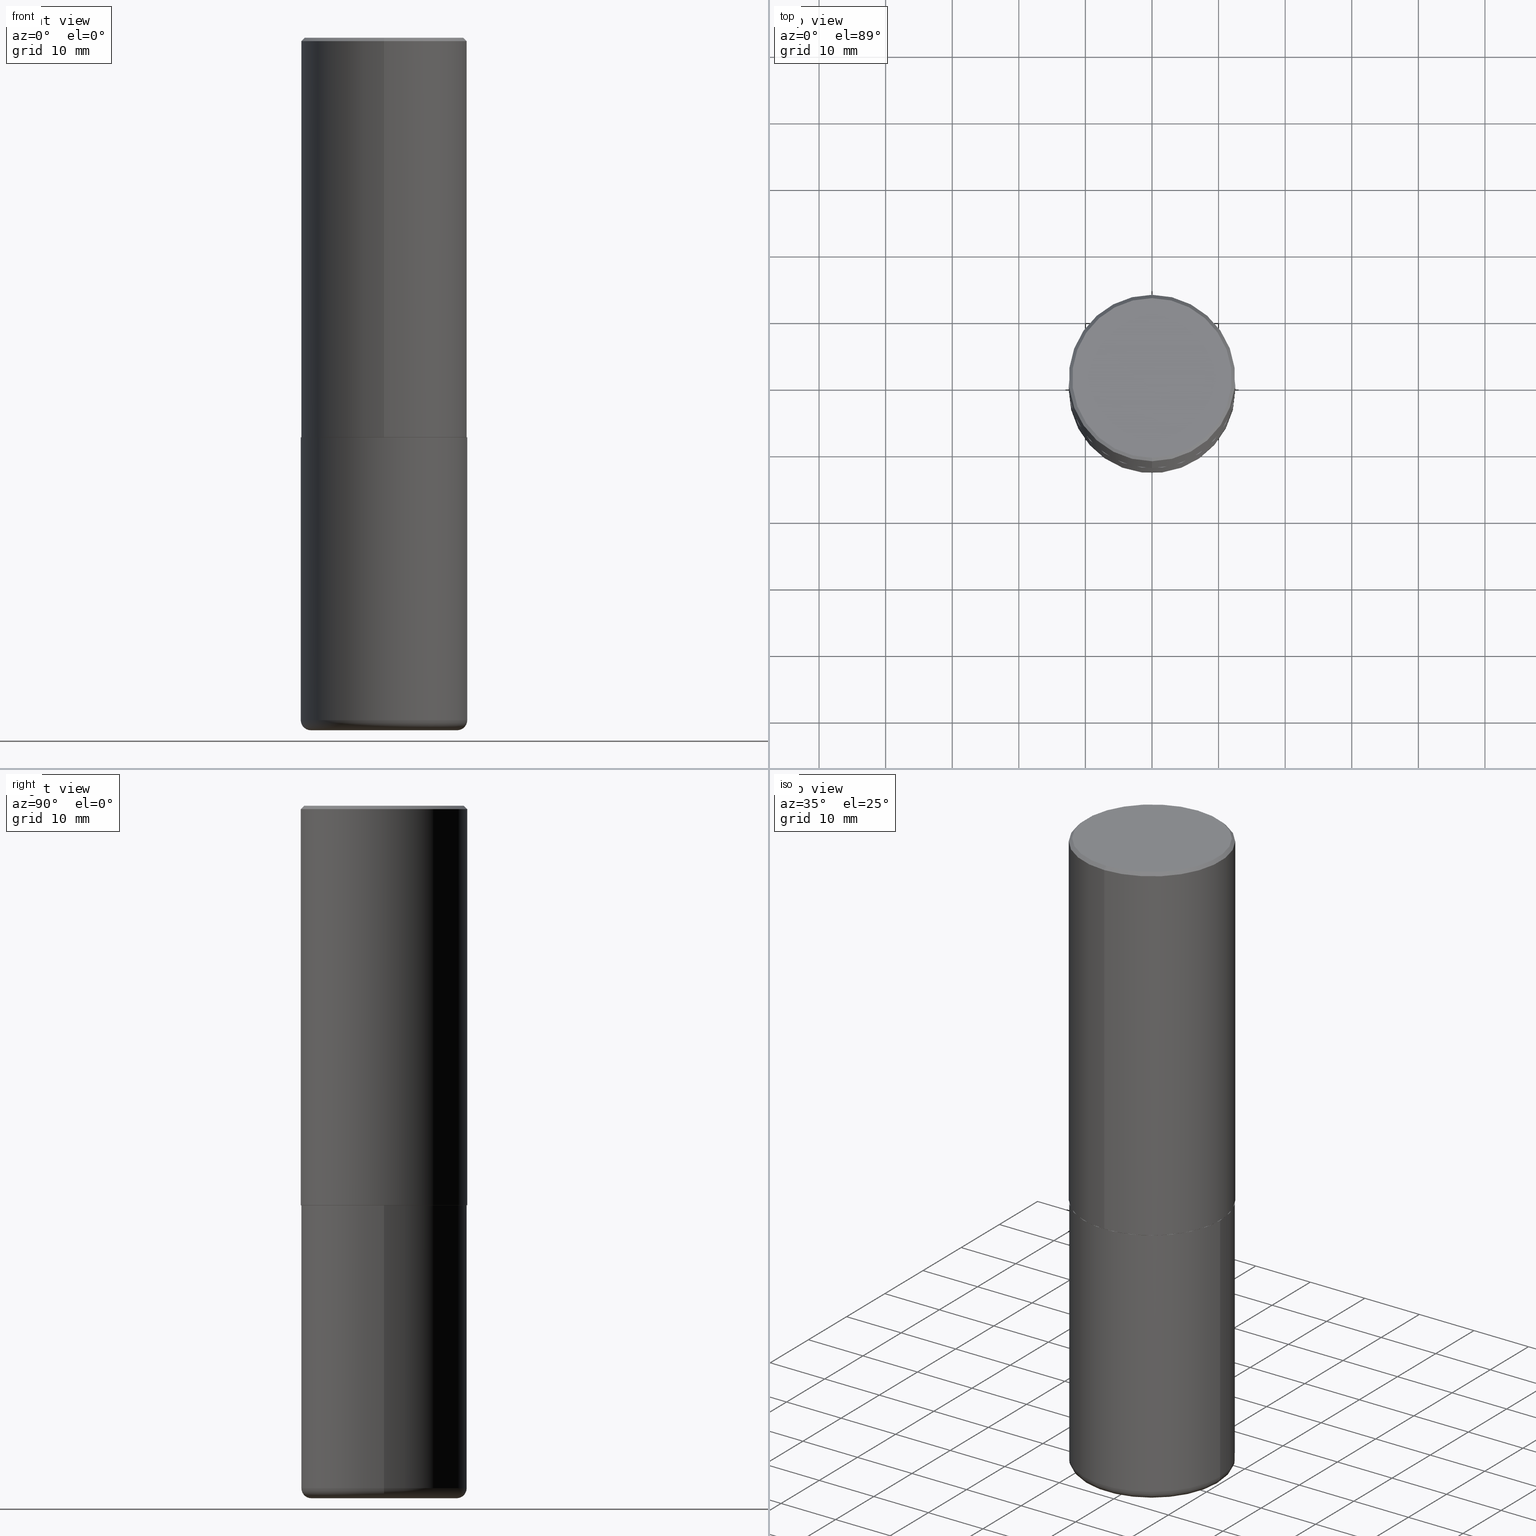
[diagram: canonical four-view strip — front | top / right | iso, engineering-drawing reading convention]
A machine part, canonical four-view strip (front | top / right | iso — engineering-drawing reading convention). The complete STEP part file that produces these views, byte-faithful:
ISO-10303-21;
HEADER;
FILE_DESCRIPTION (( 'STEP AP203' ),
    '1' );
FILE_NAME ('46231.STEP',
    '2024-03-04T20:29:12',
    ( '' ),
    ( '' ),
    'SwSTEP 2.0',
    'SolidWorks 2023',
    '' );
FILE_SCHEMA (( 'CONFIG_CONTROL_DESIGN' ));
ENDSEC;

DATA;
#1 = FACE_OUTER_BOUND ( 'NONE', #240, .T. ) ;
#2 = MECHANICAL_CONTEXT ( 'NONE', #387, 'mechanical' ) ;
#3 = VERTEX_POINT ( 'NONE', #335 ) ;
#4 = DIRECTION ( 'NONE',  ( -6.982962677686266711E-15, -1.000000000000000000, 3.330506545156064285E-15 ) ) ;
#5 = ORIENTED_EDGE ( 'NONE', *, *, #68, .F. ) ;
#6 = CARTESIAN_POINT ( 'NONE',  ( 3.297005828269569180E-15, 0.4721499999999997921, -1.572350238809718897E-15 ) ) ;
#7 = ORIENTED_EDGE ( 'NONE', *, *, #389, .F. ) ;
#8 = DIRECTION ( 'NONE',  ( -2.445468806185136597E-29, 3.491481338843145583E-15, 1.000000000000000000 ) ) ;
#9 = ORIENTED_EDGE ( 'NONE', *, *, #327, .T. ) ;
#10 = EDGE_CURVE ( 'NONE', #3, #225, #313, .T. ) ;
#11 = DIRECTION ( 'NONE',  ( -1.000000000000000000, 6.982962677686265922E-15, -4.876176775795935793E-29 ) ) ;
#12 = APPROVAL_STATUS ( 'not_yet_approved' ) ;
#13 = EDGE_CURVE ( 'NONE', #225, #255, #57, .T. ) ;
#14 = DIMENSIONAL_EXPONENTS ( 1.000000000000000000, 0.000000000000000000, 0.000000000000000000, 0.000000000000000000, 0.000000000000000000, 0.000000000000000000, 0.000000000000000000 ) ;
#15 = ORIENTED_EDGE ( 'NONE', *, *, #412, .T. ) ;
#16 = TOROIDAL_SURFACE ( 'NONE', #248, 0.4323499999999999566, 0.05980000000000013777 ) ;
#17 = EDGE_CURVE ( 'NONE', #175, #288, #284, .T. ) ;
#18 = SHAPE_DEFINITION_REPRESENTATION ( #375, #78 ) ;
#19 = CARTESIAN_POINT ( 'NONE',  ( 0.4921499999999999764, -3.436665081823295777E-15, 2.399810400207969603E-29 ) ) ;
#20 = DIRECTION ( 'NONE',  ( -2.443455779928216306E-29, 3.494364107017394518E-15, 1.000000000000000000 ) ) ;
#21 = AXIS2_PLACEMENT_3D ( 'NONE', #63, #20, #25 ) ;
#22 = CARTESIAN_POINT ( 'NONE',  ( 1.001297202692504327E-28, -1.429587034189326465E-14, -4.094500000000000917 ) ) ;
#23 = VECTOR ( 'NONE', #39, 39.37007874015748143 ) ;
#24 = ORIENTED_EDGE ( 'NONE', *, *, #327, .F. ) ;
#25 = DIRECTION ( 'NONE',  ( -6.982962677686265922E-15, -1.000000000000000000, 3.495297233588267464E-15 ) ) ;
#26 = EDGE_CURVE ( 'NONE', #65, #210, #152, .T. ) ;
#27 = LINE ( 'NONE', #289, #159 ) ;
#28 = UNCERTAINTY_MEASURE_WITH_UNIT (LENGTH_MEASURE( 1.000000000000000082E-05 ), #348, 'distance_accuracy_value', 'NONE');
#29 = CIRCLE ( 'NONE', #133, 0.4921500000000002539 ) ;
#30 = APPROVAL_STATUS ( 'not_yet_approved' ) ;
#31 = ORIENTED_EDGE ( 'NONE', *, *, #137, .F. ) ;
#32 = CALENDAR_DATE ( 2024, 4, 3 ) ;
#33 = CYLINDRICAL_SURFACE ( 'NONE', #212, 0.4921499999999999764 ) ;
#34 = ORIENTED_EDGE ( 'NONE', *, *, #299, .F. ) ;
#35 = CC_DESIGN_DATE_AND_TIME_ASSIGNMENT ( #309, #401, ( #48 ) ) ;
#36 = CONICAL_SURFACE ( 'NONE', #114, 0.4921499999999999764, 0.7853981633974467247 ) ;
#37 = DIRECTION ( 'NONE',  ( 1.000000000000000000, -6.982962677686265922E-15, 0.000000000000000000 ) ) ;
#38 = LOCAL_TIME ( 15, 29, 12.00000000000000000, #44 ) ;
#39 = DIRECTION ( 'NONE',  ( -2.445468806185136877E-29, 3.491481338843145188E-15, 1.000000000000000000 ) ) ;
#40 = CARTESIAN_POINT ( 'NONE',  ( -0.4323499999999999566, -1.090699125381078817E-14, -4.094500000000000917 ) ) ;
#41 = APPROVAL_DATE_TIME ( #287, #111 ) ;
#42 = PLANE ( 'NONE',  #192 ) ;
#43 = DIRECTION ( 'NONE',  ( 2.443455779928216306E-29, -3.494364107017394124E-15, -1.000000000000000000 ) ) ;
#44 = COORDINATED_UNIVERSAL_TIME_OFFSET ( 5, 0, .BEHIND. ) ;
#45 = CIRCLE ( 'NONE', #85, 0.4921499999999999764 ) ;
#46 = ADVANCED_FACE ( 'NONE', ( #364 ), #36, .T. ) ;
#47 = ORIENTED_EDGE ( 'NONE', *, *, #10, .F. ) ;
#48 = SECURITY_CLASSIFICATION ( '', '', #184 ) ;
#49 = CARTESIAN_POINT ( 'NONE',  ( -0.4921500000000000319, -1.059014368378710651E-14, -4.034700000000000841 ) ) ;
#50 = COORDINATED_UNIVERSAL_TIME_OFFSET ( 5, 0, .BEHIND. ) ;
#51 = PERSON_AND_ORGANIZATION_ROLE ( 'classification_officer' ) ;
#52 = LINE ( 'NONE', #19, #249 ) ;
#53 = EDGE_CURVE ( 'NONE', #132, #69, #198, .T. ) ;
#54 = PERSON_AND_ORGANIZATION ( #384, #314 ) ;
#55 = AXIS2_PLACEMENT_3D ( 'NONE', #276, #89, #338 ) ;
#56 = CC_DESIGN_DATE_AND_TIME_ASSIGNMENT ( #350, #320, ( #400 ) ) ;
#57 = LINE ( 'NONE', #101, #247 ) ;
#58 = CYLINDRICAL_SURFACE ( 'NONE', #366, 0.4921500000000000874 ) ;
#59 = CARTESIAN_POINT ( 'NONE',  ( 5.771931243346433876E-29, -8.254386893596491194E-15, -2.362200000000000077 ) ) ;
#60 = EDGE_LOOP ( 'NONE', ( #245, #87 ) ) ;
#61 = ADVANCED_FACE ( 'NONE', ( #139 ), #42, .F. ) ;
#62 = AXIS2_PLACEMENT_3D ( 'NONE', #265, #232, #77 ) ;
#63 = CARTESIAN_POINT ( 'NONE',  ( 4.886911559856459377E-31, -6.988728214034825176E-17, -0.02000000000000010797 ) ) ;
#64 = CC_DESIGN_SECURITY_CLASSIFICATION ( #48, ( #226 ) ) ;
#65 = VERTEX_POINT ( 'NONE', #180 ) ;
#66 = CC_DESIGN_PERSON_AND_ORGANIZATION_ASSIGNMENT ( #110, #228, ( #334 ) ) ;
#67 = DIRECTION ( 'NONE',  ( -2.443455779928216306E-29, 3.494364107017394124E-15, 1.000000000000000000 ) ) ;
#68 = EDGE_CURVE ( 'NONE', #288, #175, #45, .T. ) ;
#69 = VERTEX_POINT ( 'NONE', #40 ) ;
#70 =( GEOMETRIC_REPRESENTATION_CONTEXT ( 3 ) GLOBAL_UNCERTAINTY_ASSIGNED_CONTEXT ( ( #28 ) ) GLOBAL_UNIT_ASSIGNED_CONTEXT ( ( #348, #324, #393 ) ) REPRESENTATION_CONTEXT ( 'NONE', 'WORKASPACE' ) );
#71 = DIRECTION ( 'NONE',  ( 1.000000000000000000, -6.982962677686265922E-15, 4.876176775795935793E-29 ) ) ;
#72 = APPROVAL_ROLE ( '' ) ;
#73 = ORIENTED_EDGE ( 'NONE', *, *, #266, .T. ) ;
#74 = CARTESIAN_POINT ( 'NONE',  ( -3.788029597653915007E-45, 5.417227015563283048E-31, 1.550275486370864429E-16 ) ) ;
#75 = ADVANCED_FACE ( 'NONE', ( #170 ), #16, .T. ) ;
#76 = DIRECTION ( 'NONE',  ( 2.438088387897960049E-29, -3.491481338843145188E-15, -1.000000000000000000 ) ) ;
#77 = DIRECTION ( 'NONE',  ( -6.982962677686265922E-15, -1.000000000000000000, 3.337287582609300506E-15 ) ) ;
#78 = ADVANCED_BREP_SHAPE_REPRESENTATION ( '46231', ( #257, #252, #154 ), #70 ) ;
#79 = CARTESIAN_POINT ( 'NONE',  ( 9.866732992315171563E-29, -1.408707975783044020E-14, -4.034700000000000841 ) ) ;
#80 = DIRECTION ( 'NONE',  ( -2.443455779928216306E-29, 3.494364107017394518E-15, 1.000000000000000000 ) ) ;
#81 = PERSON_AND_ORGANIZATION_ROLE ( 'creator' ) ;
#82 = ORIENTED_EDGE ( 'NONE', *, *, #26, .F. ) ;
#83 = DIRECTION ( 'NONE',  ( -2.443455779928216306E-29, 3.494364107017394124E-15, 1.000000000000000000 ) ) ;
#84 = PERSON_AND_ORGANIZATION ( #384, #314 ) ;
#85 = AXIS2_PLACEMENT_3D ( 'NONE', #237, #8, #109 ) ;
#86 = AXIS2_PLACEMENT_3D ( 'NONE', #194, #316, #373 ) ;
#87 = ORIENTED_EDGE ( 'NONE', *, *, #26, .T. ) ;
#88 = ORIENTED_EDGE ( 'NONE', *, *, #283, .T. ) ;
#89 = DIRECTION ( 'NONE',  ( -2.443455779928216306E-29, 3.494364107017394518E-15, 1.000000000000000000 ) ) ;
#90 = AXIS2_PLACEMENT_3D ( 'NONE', #167, #262, #37 ) ;
#91 = CC_DESIGN_APPROVAL ( #111, ( #400 ) ) ;
#92 = CARTESIAN_POINT ( 'NONE',  ( -0.4323499999999999566, -1.101504823977164696E-14, -4.034700000000000841 ) ) ;
#93 = CARTESIAN_POINT ( 'NONE',  ( -3.376394089603258262E-15, -0.4921500000000000319, -0.01999999999999838712 ) ) ;
#94 = EDGE_CURVE ( 'NONE', #210, #345, #385, .T. ) ;
#95 = ORIENTED_EDGE ( 'NONE', *, *, #214, .F. ) ;
#96 = APPLICATION_CONTEXT ( 'configuration controlled 3d designs of mechanical parts and assemblies' ) ;
#97 = FACE_OUTER_BOUND ( 'NONE', #394, .T. ) ;
#98 = AXIS2_PLACEMENT_3D ( 'NONE', #206, #323, #173 ) ;
#99 = DIRECTION ( 'NONE',  ( -2.443455779928216306E-29, 3.494364107017394124E-15, 1.000000000000000000 ) ) ;
#100 = AXIS2_PLACEMENT_3D ( 'NONE', #208, #156, #325 ) ;
#101 = CARTESIAN_POINT ( 'NONE',  ( -3.436665081823296565E-15, -0.4921500000000000874, 1.719751295268611036E-15 ) ) ;
#102 = LENGTH_MEASURE_WITH_UNIT ( LENGTH_MEASURE( 0.02539999999999999897 ), #231 );
#103 = AXIS2_PLACEMENT_3D ( 'NONE', #22, #406, #272 ) ;
#104 = DIRECTION ( 'NONE',  ( -2.443455779928216306E-29, 3.494364107017394518E-15, 1.000000000000000000 ) ) ;
#105 = ORIENTED_EDGE ( 'NONE', *, *, #224, .F. ) ;
#106 = CARTESIAN_POINT ( 'NONE',  ( 9.866732992315171563E-29, -1.408707975783044020E-14, -4.034700000000000841 ) ) ;
#107 = CARTESIAN_POINT ( 'NONE',  ( -0.4921499999999999764, 3.496936074043332897E-15, -2.420853904668951509E-29 ) ) ;
#108 = ORIENTED_EDGE ( 'NONE', *, *, #10, .T. ) ;
#109 = DIRECTION ( 'NONE',  ( 1.000000000000000000, -6.982962677686265922E-15, 0.000000000000000000 ) ) ;
#110 = PERSON_AND_ORGANIZATION ( #384, #314 ) ;
#111 = APPROVAL ( #30, 'UNSPECIFIED' ) ;
#112 = EDGE_LOOP ( 'NONE', ( #119, #207, #397, #121 ) ) ;
#113 = DIRECTION ( 'NONE',  ( 1.000000000000000000, -6.982962677686264344E-15, 4.883557194083111780E-29 ) ) ;
#114 = AXIS2_PLACEMENT_3D ( 'NONE', #329, #388, #213 ) ;
#115 = DIRECTION ( 'NONE',  ( 1.000000000000000000, -6.982962677686265133E-15, 0.000000000000000000 ) ) ;
#116 = ORIENTED_EDGE ( 'NONE', *, *, #124, .F. ) ;
#117 = DIRECTION ( 'NONE',  ( -6.982962677686265922E-15, -1.000000000000000000, 3.337287582609300506E-15 ) ) ;
#118 = EDGE_LOOP ( 'NONE', ( #24, #7, #147, #88 ) ) ;
#119 = ORIENTED_EDGE ( 'NONE', *, *, #412, .F. ) ;
#120 = CIRCLE ( 'NONE', #344, 0.4911499999999999755 ) ;
#121 = ORIENTED_EDGE ( 'NONE', *, *, #131, .F. ) ;
#122 = CC_DESIGN_APPROVAL ( #188, ( #226 ) ) ;
#123 = PERSON_AND_ORGANIZATION_ROLE ( 'design_supplier' ) ;
#124 = EDGE_CURVE ( 'NONE', #418, #411, #414, .T. ) ;
#125 = DIRECTION ( 'NONE',  ( -6.982962677686266711E-15, -1.000000000000000000, 3.491481338843145583E-15 ) ) ;
#126 = AXIS2_PLACEMENT_3D ( 'NONE', #74, #290, #332 ) ;
#127 = CARTESIAN_POINT ( 'NONE',  ( 3.366835455046432478E-15, 0.4721499999999997921, -1.494836464491175540E-15 ) ) ;
#128 = ADVANCED_FACE ( 'NONE', ( #142 ), #307, .T. ) ;
#129 = LINE ( 'NONE', #161, #404 ) ;
#130 = DIRECTION ( 'NONE',  ( -6.982962677686265922E-15, -1.000000000000000000, 3.337287582609300506E-15 ) ) ;
#131 = EDGE_CURVE ( 'NONE', #411, #418, #291, .T. ) ;
#132 = VERTEX_POINT ( 'NONE', #295 ) ;
#133 = AXIS2_PLACEMENT_3D ( 'NONE', #269, #80, #4 ) ;
#134 = CONICAL_SURFACE ( 'NONE', #100, 0.4921499999999999764, 0.7853981633974467247 ) ;
#135 = EDGE_LOOP ( 'NONE', ( #136, #15, #116, #243 ) ) ;
#136 = ORIENTED_EDGE ( 'NONE', *, *, #68, .T. ) ;
#137 = EDGE_CURVE ( 'NONE', #225, #3, #29, .T. ) ;
#138 = CC_DESIGN_APPROVAL ( #377, ( #48 ) ) ;
#139 = FACE_OUTER_BOUND ( 'NONE', #60, .T. ) ;
#140 = DIRECTION ( 'NONE',  ( -2.445468806185136597E-29, 3.491481338843145583E-15, 1.000000000000000000 ) ) ;
#141 = ORIENTED_EDGE ( 'NONE', *, *, #137, .T. ) ;
#142 = FACE_OUTER_BOUND ( 'NONE', #200, .T. ) ;
#143 = DIRECTION ( 'NONE',  ( 1.000000000000000000, -6.982962677686263555E-15, 0.000000000000000000 ) ) ;
#144 = EDGE_CURVE ( 'NONE', #255, #345, #356, .T. ) ;
#145 = AXIS2_PLACEMENT_3D ( 'NONE', #146, #396, #328 ) ;
#146 = CARTESIAN_POINT ( 'NONE',  ( 4.886911559856459377E-31, -6.988728214034825176E-17, -0.02000000000000010797 ) ) ;
#147 = ORIENTED_EDGE ( 'NONE', *, *, #94, .T. ) ;
#148 = APPROVAL_DATE_TIME ( #367, #377 ) ;
#149 = CARTESIAN_POINT ( 'NONE',  ( -3.429682119145551781E-15, -0.4911500000000082466, -2.362199999999998745 ) ) ;
#150 = PERSON_AND_ORGANIZATION ( #384, #314 ) ;
#151 = EDGE_CURVE ( 'NONE', #355, #218, #301, .T. ) ;
#152 = CIRCLE ( 'NONE', #126, 0.4721499999999997921 ) ;
#153 = ORIENTED_EDGE ( 'NONE', *, *, #144, .F. ) ;
#154 = AXIS2_PLACEMENT_3D ( 'NONE', #359, #168, #258 ) ;
#155 = PERSON_AND_ORGANIZATION ( #384, #314 ) ;
#156 = DIRECTION ( 'NONE',  ( 2.443455779928216306E-29, -3.494364107017394518E-15, -1.000000000000000000 ) ) ;
#157 = FACE_OUTER_BOUND ( 'NONE', #369, .T. ) ;
#158 = AXIS2_PLACEMENT_3D ( 'NONE', #201, #293, #143 ) ;
#159 = VECTOR ( 'NONE', #263, 39.37007874015748143 ) ;
#160 = CARTESIAN_POINT ( 'NONE',  ( 0.4921500000000000319, -1.752374483965373598E-14, -4.034700000000000841 ) ) ;
#161 = CARTESIAN_POINT ( 'NONE',  ( 3.496936074043333291E-15, 0.4921500000000000874, -1.719751295268611036E-15 ) ) ;
#162 = CC_DESIGN_PERSON_AND_ORGANIZATION_ASSIGNMENT ( #270, #417, ( #400 ) ) ;
#163 = AXIS2_PLACEMENT_3D ( 'NONE', #347, #67, #315 ) ;
#164 = AXIS2_PLACEMENT_3D ( 'NONE', #187, #76, #310 ) ;
#165 = COORDINATED_UNIVERSAL_TIME_OFFSET ( 5, 0, .BEHIND. ) ;
#166 = EDGE_LOOP ( 'NONE', ( #178, #351, #5, #34 ) ) ;
#167 = CARTESIAN_POINT ( 'NONE',  ( 9.866732992315171563E-29, -1.408707975783044020E-14, -4.034700000000000841 ) ) ;
#168 = DIRECTION ( 'NONE',  ( 0.000000000000000000, 0.000000000000000000, 1.000000000000000000 ) ) ;
#169 = AXIS2_PLACEMENT_3D ( 'NONE', #79, #306, #113 ) ;
#170 = FACE_OUTER_BOUND ( 'NONE', #166, .T. ) ;
#171 = EDGE_LOOP ( 'NONE', ( #82, #9, #268, #362 ) ) ;
#172 = CARTESIAN_POINT ( 'NONE',  ( -3.429682119145551781E-15, -0.4911500000000082466, -2.362199999999998745 ) ) ;
#173 = DIRECTION ( 'NONE',  ( 1.000000000000000000, -6.982962677686263555E-15, 0.000000000000000000 ) ) ;
#174 = CARTESIAN_POINT ( 'NONE',  ( 0.000000000000000000, 0.000000000000000000, 0.000000000000000000 ) ) ;
#175 = VERTEX_POINT ( 'NONE', #49 ) ;
#176 = DIRECTION ( 'NONE',  ( 1.000000000000000000, -6.982962677686264344E-15, 4.883557194083111780E-29 ) ) ;
#177 = APPROVAL_STATUS ( 'not_yet_approved' ) ;
#178 = ORIENTED_EDGE ( 'NONE', *, *, #53, .T. ) ;
#179 = AXIS2_PLACEMENT_3D ( 'NONE', #341, #251, #217 ) ;
#180 = CARTESIAN_POINT ( 'NONE',  ( -3.307789109625542142E-15, -0.4721499999999997921, 1.804891561765348180E-15 ) ) ;
#181 = DIRECTION ( 'NONE',  ( -1.000000000000000000, 7.105427357601017636E-15, 0.000000000000000000 ) ) ;
#182 = PERSON_AND_ORGANIZATION ( #384, #314 ) ;
#183 = FACE_OUTER_BOUND ( 'NONE', #135, .T. ) ;
#184 = SECURITY_CLASSIFICATION_LEVEL ( 'unclassified' ) ;
#185 = AXIS2_PLACEMENT_3D ( 'NONE', #92, #193, #181 ) ;
#186 = ORIENTED_EDGE ( 'NONE', *, *, #13, .T. ) ;
#187 = CARTESIAN_POINT ( 'NONE',  ( 6.399774875433390499E-29, -1.947017431323977898E-14, -4.094500000000000917 ) ) ;
#188 = APPROVAL ( #12, 'UNSPECIFIED' ) ;
#189 = CARTESIAN_POINT ( 'NONE',  ( 0.000000000000000000, 0.000000000000000000, 0.000000000000000000 ) ) ;
#190 = ORIENTED_EDGE ( 'NONE', *, *, #124, .T. ) ;
#191 = PLANE ( 'NONE',  #280 ) ;
#192 = AXIS2_PLACEMENT_3D ( 'NONE', #6, #43, #297 ) ;
#193 = DIRECTION ( 'NONE',  ( 7.105427357601001859E-15, 1.000000000000000000, -3.491481338843145583E-15 ) ) ;
#194 = CARTESIAN_POINT ( 'NONE',  ( 0.000000000000000000, 0.000000000000000000, 0.000000000000000000 ) ) ;
#195 = ORIENTED_EDGE ( 'NONE', *, *, #222, .F. ) ;
#196 = CARTESIAN_POINT ( 'NONE',  ( -3.376394089603258262E-15, -0.4921500000000000319, -0.01999999999999838712 ) ) ;
#197 = LINE ( 'NONE', #107, #23 ) ;
#198 = CIRCLE ( 'NONE', #372, 0.4323499999999999566 ) ;
#199 = AXIS2_PLACEMENT_3D ( 'NONE', #267, #104, #296 ) ;
#200 = EDGE_LOOP ( 'NONE', ( #285, #202, #73, #47 ) ) ;
#201 = CARTESIAN_POINT ( 'NONE',  ( 5.776686413970530874E-29, -8.247577218615279626E-15, -2.362200000000000077 ) ) ;
#202 = ORIENTED_EDGE ( 'NONE', *, *, #222, .T. ) ;
#203 = CC_DESIGN_PERSON_AND_ORGANIZATION_ASSIGNMENT ( #54, #81, ( #226 ) ) ;
#204 = ADVANCED_FACE ( 'NONE', ( #253 ), #378, .T. ) ;
#205 = LOCAL_TIME ( 15, 29, 12.00000000000000000, #402 ) ;
#206 = CARTESIAN_POINT ( 'NONE',  ( 5.776686413970530874E-29, -8.247577218615279626E-15, -2.362200000000000077 ) ) ;
#207 = ORIENTED_EDGE ( 'NONE', *, *, #17, .T. ) ;
#208 = CARTESIAN_POINT ( 'NONE',  ( 4.886911559856459377E-31, -6.988728214034825176E-17, -0.02000000000000010797 ) ) ;
#209 = DIRECTION ( 'NONE',  ( -2.443455779928216306E-29, 3.494364107017394518E-15, 1.000000000000000000 ) ) ;
#210 = VERTEX_POINT ( 'NONE', #127 ) ;
#211 = VECTOR ( 'NONE', #343, 39.37007874015748143 ) ;
#212 = AXIS2_PLACEMENT_3D ( 'NONE', #174, #140, #71 ) ;
#213 = DIRECTION ( 'NONE',  ( 6.982962677686265922E-15, 1.000000000000000000, -3.495297233588267464E-15 ) ) ;
#214 = EDGE_CURVE ( 'NONE', #3, #345, #129, .T. ) ;
#215 = PLANE ( 'NONE',  #164 ) ;
#216 = CLOSED_SHELL ( 'NONE', ( #371, #75, #256, #403, #346, #349 ) ) ;
#217 = DIRECTION ( 'NONE',  ( -6.982962677686265922E-15, -1.000000000000000000, 3.494364107017394518E-15 ) ) ;
#218 = VERTEX_POINT ( 'NONE', #340 ) ;
#219 = CARTESIAN_POINT ( 'NONE',  ( -3.436665081823239768E-15, -0.4921500000000085251, -2.361199999999998411 ) ) ;
#220 = LINE ( 'NONE', #149, #211 ) ;
#221 = CIRCLE ( 'NONE', #379, 0.05980000000000013777 ) ;
#222 = EDGE_CURVE ( 'NONE', #218, #355, #120, .T. ) ;
#223 = DIRECTION ( 'NONE',  ( -2.443455779928216306E-29, 3.494364107017394518E-15, 1.000000000000000000 ) ) ;
#224 = EDGE_CURVE ( 'NONE', #69, #175, #382, .T. ) ;
#225 = VERTEX_POINT ( 'NONE', #219 ) ;
#226 = PRODUCT_DEFINITION_FORMATION_WITH_SPECIFIED_SOURCE ( 'ANY', '', #334, .NOT_KNOWN. ) ;
#227 = ADVANCED_FACE ( 'NONE', ( #374 ), #376, .F. ) ;
#228 = PERSON_AND_ORGANIZATION_ROLE ( 'design_owner' ) ;
#229 = ORIENTED_EDGE ( 'NONE', *, *, #381, .T. ) ;
#230 = CARTESIAN_POINT ( 'NONE',  ( 1.001297202692504327E-28, -1.429587034189326465E-14, -4.094500000000000917 ) ) ;
#231 =( LENGTH_UNIT ( ) NAMED_UNIT ( * ) SI_UNIT ( $, .METRE. ) );
#232 = DIRECTION ( 'NONE',  ( -2.443455779928216306E-29, 3.494364107017394518E-15, 1.000000000000000000 ) ) ;
#233 = APPLICATION_PROTOCOL_DEFINITION ( 'international standard', 'config_control_design', 1994, #96 ) ;
#234 = ORIENTED_EDGE ( 'NONE', *, *, #17, .F. ) ;
#235 = FACE_OUTER_BOUND ( 'NONE', #118, .T. ) ;
#236 = CIRCLE ( 'NONE', #199, 0.4721499999999997921 ) ;
#237 = CARTESIAN_POINT ( 'NONE',  ( 9.866732992315171563E-29, -1.408707975783044020E-14, -4.034700000000000841 ) ) ;
#238 = ORIENTED_EDGE ( 'NONE', *, *, #299, .T. ) ;
#239 = CALENDAR_DATE ( 2024, 4, 3 ) ;
#240 = EDGE_LOOP ( 'NONE', ( #360, #260 ) ) ;
#241 = ORIENTED_EDGE ( 'NONE', *, *, #13, .F. ) ;
#242 = LOCAL_TIME ( 15, 29, 12.00000000000000000, #50 ) ;
#243 = ORIENTED_EDGE ( 'NONE', *, *, #357, .F. ) ;
#244 = CALENDAR_DATE ( 2024, 4, 3 ) ;
#245 = ORIENTED_EDGE ( 'NONE', *, *, #389, .T. ) ;
#246 = DIRECTION ( 'NONE',  ( 1.000000000000000000, -6.982962677686294321E-15, 0.000000000000000000 ) ) ;
#247 = VECTOR ( 'NONE', #83, 39.37007874015748143 ) ;
#248 = AXIS2_PLACEMENT_3D ( 'NONE', #106, #353, #176 ) ;
#249 = VECTOR ( 'NONE', #391, 39.37007874015748143 ) ;
#250 = LINE ( 'NONE', #93, #261 ) ;
#251 = DIRECTION ( 'NONE',  ( -2.443455779928216306E-29, 3.494364107017394518E-15, 1.000000000000000000 ) ) ;
#252 = MANIFOLD_SOLID_BREP ( 'Body-Move/Copy2[2]', #254 ) ;
#253 = FACE_OUTER_BOUND ( 'NONE', #386, .T. ) ;
#254 = CLOSED_SHELL ( 'NONE', ( #292, #204, #46, #368, #304, #128, #227, #61 ) ) ;
#255 = VERTEX_POINT ( 'NONE', #196 ) ;
#256 = ADVANCED_FACE ( 'NONE', ( #97 ), #191, .F. ) ;
#257 = MANIFOLD_SOLID_BREP ( 'Body-Move/Copy2[1]', #216 ) ;
#258 = DIRECTION ( 'NONE',  ( 1.000000000000000000, 0.000000000000000000, 0.000000000000000000 ) ) ;
#259 = FACE_OUTER_BOUND ( 'NONE', #112, .T. ) ;
#260 = ORIENTED_EDGE ( 'NONE', *, *, #275, .F. ) ;
#261 = VECTOR ( 'NONE', #281, 39.37007874015748854 ) ;
#262 = DIRECTION ( 'NONE',  ( -2.445468806185136597E-29, 3.491481338843145583E-15, 1.000000000000000000 ) ) ;
#263 = DIRECTION ( 'NONE',  ( 5.024295867788576727E-15, 0.7071067811866224018, 0.7071067811864726327 ) ) ;
#264 = ORIENTED_EDGE ( 'NONE', *, *, #283, .F. ) ;
#265 = CARTESIAN_POINT ( 'NONE',  ( 5.771931243346433876E-29, -8.254386893596491194E-15, -2.362200000000000077 ) ) ;
#266 = EDGE_CURVE ( 'NONE', #355, #225, #220, .T. ) ;
#267 = CARTESIAN_POINT ( 'NONE',  ( -3.788029597653915007E-45, 5.417227015563283048E-31, 1.550275486370864429E-16 ) ) ;
#268 = ORIENTED_EDGE ( 'NONE', *, *, #144, .T. ) ;
#269 = CARTESIAN_POINT ( 'NONE',  ( 5.769487787566505932E-29, -8.250892529489472680E-15, -2.361200000000000188 ) ) ;
#270 = PERSON_AND_ORGANIZATION ( #384, #314 ) ;
#271 = APPROVAL_ROLE ( '' ) ;
#272 = DIRECTION ( 'NONE',  ( 1.000000000000000000, -6.982962677686265133E-15, 0.000000000000000000 ) ) ;
#273 = CALENDAR_DATE ( 2024, 4, 3 ) ;
#274 = CONICAL_SURFACE ( 'NONE', #322, 0.4911499999999999755, 0.7853981633975507526 ) ;
#275 = EDGE_CURVE ( 'NONE', #69, #132, #409, .T. ) ;
#276 = CARTESIAN_POINT ( 'NONE',  ( 5.769487787566505932E-29, -8.250892529489472680E-15, -2.361200000000000188 ) ) ;
#277 = PRODUCT_RELATED_PRODUCT_CATEGORY ( 'detail', '', ( #334 ) ) ;
#278 = CYLINDRICAL_SURFACE ( 'NONE', #86, 0.4921499999999999764 ) ;
#279 = DIRECTION ( 'NONE',  ( -2.443455779928216306E-29, 3.494364107017394518E-15, 1.000000000000000000 ) ) ;
#280 = AXIS2_PLACEMENT_3D ( 'NONE', #305, #282, #11 ) ;
#281 = DIRECTION ( 'NONE',  ( -4.851104656540955597E-15, -0.7071067811865487940, -0.7071067811865461294 ) ) ;
#282 = DIRECTION ( 'NONE',  ( 2.438088387897960049E-29, -3.491481338843145188E-15, -1.000000000000000000 ) ) ;
#283 = EDGE_CURVE ( 'NONE', #345, #255, #395, .T. ) ;
#284 = CIRCLE ( 'NONE', #90, 0.4921499999999999764 ) ;
#285 = ORIENTED_EDGE ( 'NONE', *, *, #381, .F. ) ;
#286 = APPROVAL_PERSON_ORGANIZATION ( #155, #377, #361 ) ;
#287 = DATE_AND_TIME ( #380, #303 ) ;
#288 = VERTEX_POINT ( 'NONE', #160 ) ;
#289 = CARTESIAN_POINT ( 'NONE',  ( 3.489830646685789081E-15, 0.4911499999999917043, -2.362200000000001854 ) ) ;
#290 = DIRECTION ( 'NONE',  ( -2.443455779928216306E-29, 3.494364107017394518E-15, 1.000000000000000000 ) ) ;
#291 = CIRCLE ( 'NONE', #98, 0.4921499999999999764 ) ;
#292 = ADVANCED_FACE ( 'NONE', ( #157 ), #274, .T. ) ;
#293 = DIRECTION ( 'NONE',  ( -2.445468806185136597E-29, 3.491481338843145583E-15, 1.000000000000000000 ) ) ;
#294 = ORIENTED_EDGE ( 'NONE', *, *, #151, .F. ) ;
#295 = CARTESIAN_POINT ( 'NONE',  ( 0.4323499999999999566, -1.731495425559091942E-14, -4.094500000000000917 ) ) ;
#296 = DIRECTION ( 'NONE',  ( -6.982962677686265922E-15, -1.000000000000000000, 3.494364107017394124E-15 ) ) ;
#297 = DIRECTION ( 'NONE',  ( 6.982962677686265922E-15, 1.000000000000000000, -3.494364107017394124E-15 ) ) ;
#298 = APPROVAL_DATE_TIME ( #398, #188 ) ;
#299 = EDGE_CURVE ( 'NONE', #132, #288, #221, .T. ) ;
#300 = EDGE_LOOP ( 'NONE', ( #105, #365, #238, #234 ) ) ;
#301 = CIRCLE ( 'NONE', #337, 0.4911499999999999755 ) ;
#302 = LOCAL_TIME ( 15, 29, 12.00000000000000000, #410 ) ;
#303 = LOCAL_TIME ( 15, 29, 12.00000000000000000, #165 ) ;
#304 = ADVANCED_FACE ( 'NONE', ( #370 ), #58, .T. ) ;
#305 = CARTESIAN_POINT ( 'NONE',  ( 5.776686413970530874E-29, -8.247577218615279626E-15, -2.362200000000000077 ) ) ;
#306 = DIRECTION ( 'NONE',  ( -2.445468806185136597E-29, 3.491481338843145583E-15, 1.000000000000000000 ) ) ;
#307 = CONICAL_SURFACE ( 'NONE', #62, 0.4911499999999999755, 0.7853981633975507526 ) ;
#308 = TOROIDAL_SURFACE ( 'NONE', #169, 0.4323499999999999566, 0.05980000000000013777 ) ;
#309 = DATE_AND_TIME ( #273, #205 ) ;
#310 = DIRECTION ( 'NONE',  ( -1.000000000000000000, 6.982962677686265922E-15, -4.876176775795935793E-29 ) ) ;
#311 = DIRECTION ( 'NONE',  ( -2.443455779928216306E-29, 3.494364107017394518E-15, 1.000000000000000000 ) ) ;
#312 = DIRECTION ( 'NONE',  ( -6.982962677686265922E-15, -1.000000000000000000, 3.337287582609300506E-15 ) ) ;
#313 = CIRCLE ( 'NONE', #55, 0.4921500000000002539 ) ;
#314 = ORGANIZATION ( 'UNSPECIFIED', 'UNSPECIFIED', '' ) ;
#315 = DIRECTION ( 'NONE',  ( -6.982962677686265922E-15, -1.000000000000000000, 3.494364107017394124E-15 ) ) ;
#316 = DIRECTION ( 'NONE',  ( -2.445468806185136597E-29, 3.491481338843145583E-15, 1.000000000000000000 ) ) ;
#317 = EDGE_LOOP ( 'NONE', ( #95, #108, #186, #264 ) ) ;
#318 = APPLICATION_PROTOCOL_DEFINITION ( 'international standard', 'config_control_design', 1994, #387 ) ;
#319 = PERSON_AND_ORGANIZATION ( #384, #314 ) ;
#320 = DATE_TIME_ROLE ( 'creation_date' ) ;
#321 = EDGE_LOOP ( 'NONE', ( #294, #195 ) ) ;
#322 = AXIS2_PLACEMENT_3D ( 'NONE', #407, #279, #130 ) ;
#323 = DIRECTION ( 'NONE',  ( -2.445468806185136597E-29, 3.491481338843145583E-15, 1.000000000000000000 ) ) ;
#324 =( NAMED_UNIT ( * ) PLANE_ANGLE_UNIT ( ) SI_UNIT ( $, .RADIAN. ) );
#325 = DIRECTION ( 'NONE',  ( 6.982962677686265922E-15, 1.000000000000000000, -3.495297233588267464E-15 ) ) ;
#326 = DESIGN_CONTEXT ( 'detailed design', #96, 'design' ) ;
#327 = EDGE_CURVE ( 'NONE', #65, #255, #250, .T. ) ;
#328 = DIRECTION ( 'NONE',  ( -6.982962677686265922E-15, -1.000000000000000000, 3.495297233588267464E-15 ) ) ;
#329 = CARTESIAN_POINT ( 'NONE',  ( 4.886911559856459377E-31, -6.988728214034825176E-17, -0.02000000000000010797 ) ) ;
#330 = ORIENTED_EDGE ( 'NONE', *, *, #266, .F. ) ;
#331 = VECTOR ( 'NONE', #352, 39.37007874015748143 ) ;
#332 = DIRECTION ( 'NONE',  ( -6.982962677686265922E-15, -1.000000000000000000, 3.494364107017394124E-15 ) ) ;
#333 = CC_DESIGN_PERSON_AND_ORGANIZATION_ASSIGNMENT ( #150, #51, ( #48 ) ) ;
#334 = PRODUCT ( '46231', '46231', '', ( #2 ) ) ;
#335 = CARTESIAN_POINT ( 'NONE',  ( 3.496936074043363268E-15, 0.4921499999999920383, -2.361200000000001964 ) ) ;
#336 = CARTESIAN_POINT ( 'NONE',  ( 3.436665081823296171E-15, 0.4921499999999999209, -0.02000000000000182535 ) ) ;
#337 = AXIS2_PLACEMENT_3D ( 'NONE', #392, #209, #117 ) ;
#338 = DIRECTION ( 'NONE',  ( -6.982962677686266711E-15, -1.000000000000000000, 3.330506545156064285E-15 ) ) ;
#339 = FACE_OUTER_BOUND ( 'NONE', #300, .T. ) ;
#340 = CARTESIAN_POINT ( 'NONE',  ( 3.493383360364590374E-15, 0.4911499999999917043, -2.362200000000001854 ) ) ;
#341 = CARTESIAN_POINT ( 'NONE',  ( 0.000000000000000000, 0.000000000000000000, 0.000000000000000000 ) ) ;
#342 = ORIENTED_EDGE ( 'NONE', *, *, #151, .T. ) ;
#343 = DIRECTION ( 'NONE',  ( -4.937700262165053702E-15, -0.7071067811866175168, 0.7071067811864775177 ) ) ;
#344 = AXIS2_PLACEMENT_3D ( 'NONE', #59, #223, #312 ) ;
#345 = VERTEX_POINT ( 'NONE', #336 ) ;
#346 = ADVANCED_FACE ( 'NONE', ( #339 ), #308, .T. ) ;
#347 = CARTESIAN_POINT ( 'NONE',  ( 5.771931243346433876E-29, -8.254386893596491194E-15, -2.362200000000000077 ) ) ;
#348 =( CONVERSION_BASED_UNIT ( 'INCH', #102 ) LENGTH_UNIT ( ) NAMED_UNIT ( #14 ) );
#349 = ADVANCED_FACE ( 'NONE', ( #1 ), #215, .T. ) ;
#350 = DATE_AND_TIME ( #32, #302 ) ;
#351 = ORIENTED_EDGE ( 'NONE', *, *, #224, .T. ) ;
#352 = DIRECTION ( 'NONE',  ( 4.937700262164540154E-15, 0.7071067811865440200, -0.7071067811865511255 ) ) ;
#353 = DIRECTION ( 'NONE',  ( -2.445468806185136597E-29, 3.491481338843145583E-15, 1.000000000000000000 ) ) ;
#354 = CARTESIAN_POINT ( 'NONE',  ( 0.4921499999999999764, -1.168424230043857383E-14, -2.362200000000000077 ) ) ;
#355 = VERTEX_POINT ( 'NONE', #172 ) ;
#356 = CIRCLE ( 'NONE', #145, 0.4921499999999999764 ) ;
#357 = EDGE_CURVE ( 'NONE', #288, #418, #52, .T. ) ;
#358 = CARTESIAN_POINT ( 'NONE',  ( 3.436665081823296171E-15, 0.4921499999999999209, -0.02000000000000182535 ) ) ;
#359 = CARTESIAN_POINT ( 'NONE',  ( 0.000000000000000000, 0.000000000000000000, 0.000000000000000000 ) ) ;
#360 = ORIENTED_EDGE ( 'NONE', *, *, #53, .F. ) ;
#361 = APPROVAL_ROLE ( '' ) ;
#362 = ORIENTED_EDGE ( 'NONE', *, *, #94, .F. ) ;
#363 = CC_DESIGN_PERSON_AND_ORGANIZATION_ASSIGNMENT ( #182, #123, ( #226 ) ) ;
#364 = FACE_OUTER_BOUND ( 'NONE', #171, .T. ) ;
#365 = ORIENTED_EDGE ( 'NONE', *, *, #275, .T. ) ;
#366 = AXIS2_PLACEMENT_3D ( 'NONE', #189, #311, #405 ) ;
#367 = DATE_AND_TIME ( #244, #242 ) ;
#368 = ADVANCED_FACE ( 'NONE', ( #235 ), #134, .T. ) ;
#369 = EDGE_LOOP ( 'NONE', ( #342, #229, #31, #330 ) ) ;
#370 = FACE_OUTER_BOUND ( 'NONE', #317, .T. ) ;
#371 = ADVANCED_FACE ( 'NONE', ( #183 ), #278, .T. ) ;
#372 = AXIS2_PLACEMENT_3D ( 'NONE', #230, #415, #115 ) ;
#373 = DIRECTION ( 'NONE',  ( 1.000000000000000000, -6.982962677686265922E-15, 4.876176775795935793E-29 ) ) ;
#374 = FACE_OUTER_BOUND ( 'NONE', #321, .T. ) ;
#375 = PRODUCT_DEFINITION_SHAPE ( 'NONE', 'NONE',  #400 ) ;
#376 = PLANE ( 'NONE',  #163 ) ;
#377 = APPROVAL ( #177, 'UNSPECIFIED' ) ;
#378 = CYLINDRICAL_SURFACE ( 'NONE', #179, 0.4921500000000000874 ) ;
#379 = AXIS2_PLACEMENT_3D ( 'NONE', #399, #125, #246 ) ;
#380 = CALENDAR_DATE ( 2024, 4, 3 ) ;
#381 = EDGE_CURVE ( 'NONE', #218, #3, #27, .T. ) ;
#382 = CIRCLE ( 'NONE', #185, 0.05980000000000013777 ) ;
#383 = APPROVAL_PERSON_ORGANIZATION ( #319, #111, #72 ) ;
#384 = PERSON ( 'UNSPECIFIED', 'UNSPECIFIED', 'UNSPECIFIED', ('UNSPECIFIED'), ('UNSPECIFIED'), ('UNSPECIFIED') ) ;
#385 = LINE ( 'NONE', #358, #331 ) ;
#386 = EDGE_LOOP ( 'NONE', ( #141, #390, #153, #241 ) ) ;
#387 = APPLICATION_CONTEXT ( 'configuration controlled 3d designs of mechanical parts and assemblies' ) ;
#388 = DIRECTION ( 'NONE',  ( 2.443455779928216306E-29, -3.494364107017394518E-15, -1.000000000000000000 ) ) ;
#389 = EDGE_CURVE ( 'NONE', #210, #65, #236, .T. ) ;
#390 = ORIENTED_EDGE ( 'NONE', *, *, #214, .T. ) ;
#391 = DIRECTION ( 'NONE',  ( -2.445468806185136877E-29, 3.491481338843145188E-15, 1.000000000000000000 ) ) ;
#392 = CARTESIAN_POINT ( 'NONE',  ( 5.771931243346433876E-29, -8.254386893596491194E-15, -2.362200000000000077 ) ) ;
#393 =( NAMED_UNIT ( * ) SI_UNIT ( $, .STERADIAN. ) SOLID_ANGLE_UNIT ( ) );
#394 = EDGE_LOOP ( 'NONE', ( #190, #408 ) ) ;
#395 = CIRCLE ( 'NONE', #21, 0.4921499999999999764 ) ;
#396 = DIRECTION ( 'NONE',  ( -2.443455779928216306E-29, 3.494364107017394518E-15, 1.000000000000000000 ) ) ;
#397 = ORIENTED_EDGE ( 'NONE', *, *, #357, .T. ) ;
#398 = DATE_AND_TIME ( #239, #38 ) ;
#399 = CARTESIAN_POINT ( 'NONE',  ( 0.4323499999999999566, -1.710616367152809970E-14, -4.034700000000000841 ) ) ;
#400 = PRODUCT_DEFINITION ( 'UNKNOWN', '', #226, #326 ) ;
#401 = DATE_TIME_ROLE ( 'classification_date' ) ;
#402 = COORDINATED_UNIVERSAL_TIME_OFFSET ( 5, 0, .BEHIND. ) ;
#403 = ADVANCED_FACE ( 'NONE', ( #259 ), #33, .T. ) ;
#404 = VECTOR ( 'NONE', #99, 39.37007874015748143 ) ;
#405 = DIRECTION ( 'NONE',  ( -6.982962677686265922E-15, -1.000000000000000000, 3.494364107017394518E-15 ) ) ;
#406 = DIRECTION ( 'NONE',  ( -2.445468806185136597E-29, 3.491481338843145583E-15, 1.000000000000000000 ) ) ;
#407 = CARTESIAN_POINT ( 'NONE',  ( 5.771931243346433876E-29, -8.254386893596491194E-15, -2.362200000000000077 ) ) ;
#408 = ORIENTED_EDGE ( 'NONE', *, *, #131, .T. ) ;
#409 = CIRCLE ( 'NONE', #103, 0.4323499999999999566 ) ;
#410 = COORDINATED_UNIVERSAL_TIME_OFFSET ( 5, 0, .BEHIND. ) ;
#411 = VERTEX_POINT ( 'NONE', #413 ) ;
#412 = EDGE_CURVE ( 'NONE', #175, #411, #197, .T. ) ;
#413 = CARTESIAN_POINT ( 'NONE',  ( -0.4921499999999999764, -7.670392414179527805E-15, -2.362200000000000077 ) ) ;
#414 = CIRCLE ( 'NONE', #158, 0.4921499999999999764 ) ;
#415 = DIRECTION ( 'NONE',  ( -2.445468806185136597E-29, 3.491481338843145583E-15, 1.000000000000000000 ) ) ;
#416 = APPROVAL_PERSON_ORGANIZATION ( #84, #188, #271 ) ;
#417 = PERSON_AND_ORGANIZATION_ROLE ( 'creator' ) ;
#418 = VERTEX_POINT ( 'NONE', #354 ) ;
ENDSEC;
END-ISO-10303-21;
